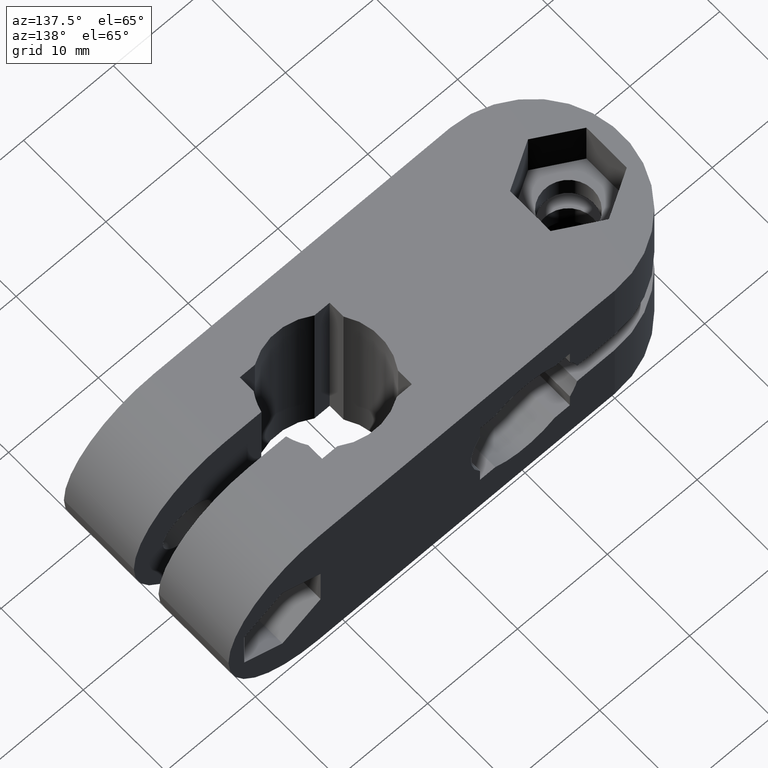
[diagram: clean part render]
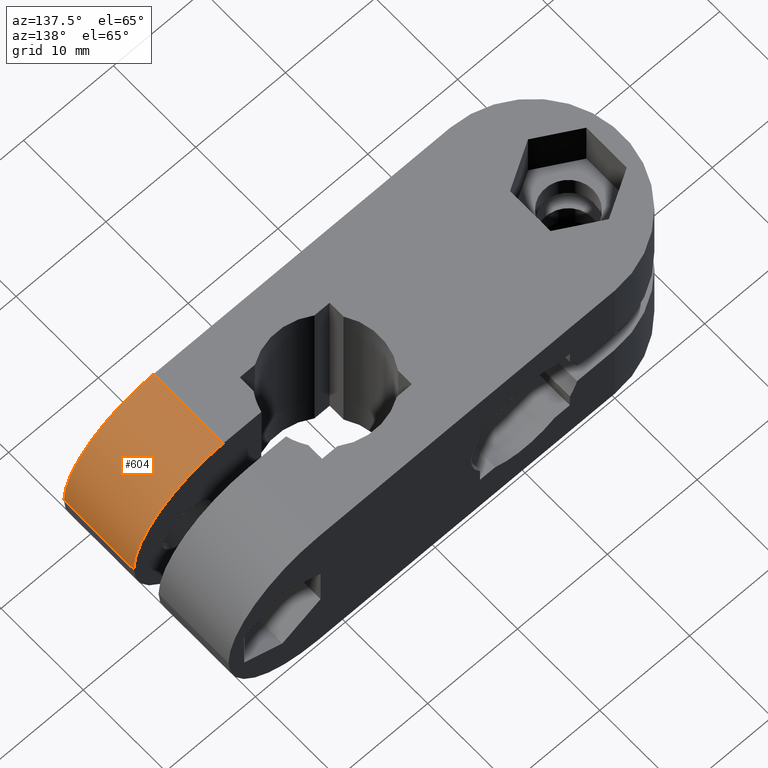
[diagram: same view with one face highlighted and labeled with its STEP entity id]
A machine part, auxiliary view. The second image highlights one B-rep face of the part: STEP entity #604.
In plain terms, the highlighted cylindrical surface (partial cylindrical patch) has radius 10 mm, axis along (0, -1, 0).
Its self-contained STEP definition (entity closure, byte-faithful):
#306=CARTESIAN_POINT('',(33.0,-20.000000000000004,0.0));
#307=VERTEX_POINT('',#306);
#325=CARTESIAN_POINT('',(33.0,-11.500000000000011,0.0));
#326=VERTEX_POINT('',#325);
#334=CARTESIAN_POINT('',(33.0,-20.000000000000004,0.0));
#335=DIRECTION('',(0.0,1.0,0.0));
#336=VECTOR('',#335,8.499999999999993);
#337=LINE('',#334,#336);
#338=EDGE_CURVE('',#307,#326,#337,.T.);
#387=CARTESIAN_POINT('',(23.0,-20.000000000000004,10.0));
#388=VERTEX_POINT('',#387);
#389=CARTESIAN_POINT('',(23.0,-20.000000000000004,0.0));
#390=DIRECTION('',(0.0,-1.0,0.0));
#391=DIRECTION('',(1.0,0.0,0.0));
#392=AXIS2_PLACEMENT_3D('',#389,#390,#391);
#393=CIRCLE('',#392,10.0);
#394=EDGE_CURVE('',#307,#388,#393,.T.);
#580=CARTESIAN_POINT('',(23.0,-20.000000000000004,0.0));
#581=DIRECTION('',(0.0,-1.0,0.0));
#582=DIRECTION('',(1.0,0.0,0.0));
#583=AXIS2_PLACEMENT_3D('',#580,#581,#582);
#584=CYLINDRICAL_SURFACE('',#583,10.0);
#585=ORIENTED_EDGE('',*,*,#338,.T.);
#586=CARTESIAN_POINT('',(23.0,-11.500000000000011,10.0));
#587=VERTEX_POINT('',#586);
#588=CARTESIAN_POINT('',(23.0,-11.500000000000011,0.0));
#589=DIRECTION('',(0.0,-1.0,0.0));
#590=DIRECTION('',(1.0,0.0,0.0));
#591=AXIS2_PLACEMENT_3D('',#588,#589,#590);
#592=CIRCLE('',#591,10.0);
#593=EDGE_CURVE('',#326,#587,#592,.T.);
#594=ORIENTED_EDGE('',*,*,#593,.T.);
#595=CARTESIAN_POINT('',(23.0,-20.000000000000004,10.0));
#596=DIRECTION('',(0.0,1.0,0.0));
#597=VECTOR('',#596,8.499999999999993);
#598=LINE('',#595,#597);
#599=EDGE_CURVE('',#388,#587,#598,.T.);
#600=ORIENTED_EDGE('',*,*,#599,.F.);
#601=ORIENTED_EDGE('',*,*,#394,.F.);
#602=EDGE_LOOP('',(#585,#594,#600,#601));
#603=FACE_OUTER_BOUND('',#602,.T.);
#604=ADVANCED_FACE('',(#603),#584,.T.);